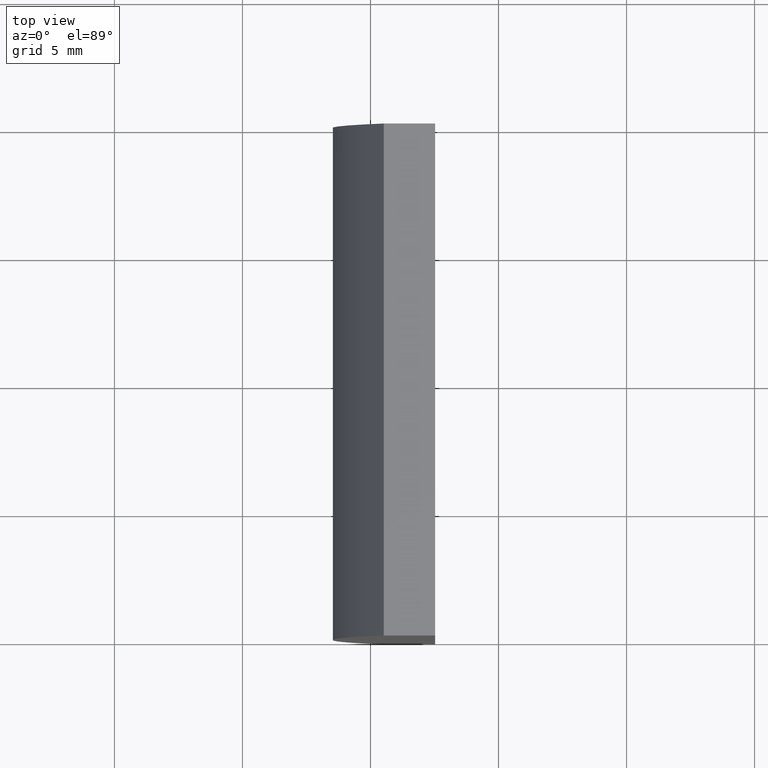
[diagram: clean part render]
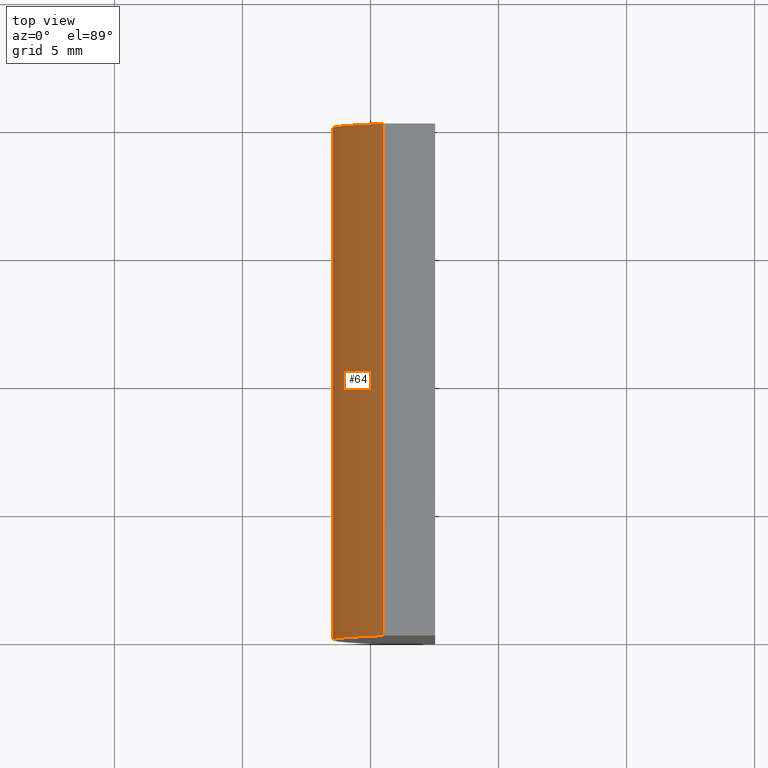
[diagram: same view with one face highlighted and labeled with its STEP entity id]
A machine part, top view. The second image highlights one B-rep face of the part: STEP entity #64.
In plain terms, the highlighted cylindrical surface (partial cylindrical patch) has radius 25.85 mm, axis along (-0, -1, -0).
Its self-contained STEP definition (entity closure, byte-faithful):
#1 = EDGE_LOOP ( 'NONE', ( #114, #41, #165, #33 ) ) ;
#2 = VECTOR ( 'NONE', #160, 1000.000000000000000 ) ;
#3 = FACE_OUTER_BOUND ( 'NONE', #1, .T. ) ;
#5 = EDGE_CURVE ( 'NONE', #54, #105, #12, .T. ) ;
#6 = CARTESIAN_POINT ( 'NONE',  ( 4.355204334851265500, 20.00000000000000000, 4.286263797015675000E-017 ) ) ;
#10 = EDGE_CURVE ( 'NONE', #99, #105, #108, .T. ) ;
#12 = CIRCLE ( 'NONE', #70, 25.85000000000000500 ) ;
#28 = CIRCLE ( 'NONE', #120, 25.85000000000000500 ) ;
#33 = ORIENTED_EDGE ( 'NONE', *, *, #119, .T. ) ;
#34 = DIRECTION ( 'NONE',  ( 0.0000000000000000000, 1.000000000000000000, 0.0000000000000000000 ) ) ;
#35 = DIRECTION ( 'NONE',  ( -0.0000000000000000000, -1.000000000000000000, -0.0000000000000000000 ) ) ;
#41 = ORIENTED_EDGE ( 'NONE', *, *, #10, .F. ) ;
#42 = AXIS2_PLACEMENT_3D ( 'NONE', #6, #35, #203 ) ;
#48 = CARTESIAN_POINT ( 'NONE',  ( -19.48221373003152100, 20.00000000000000000, -10.00000000000000000 ) ) ;
#54 = VERTEX_POINT ( 'NONE', #175 ) ;
#61 = EDGE_CURVE ( 'NONE', #140, #99, #28, .T. ) ;
#64 = ADVANCED_FACE ( 'NONE', ( #3 ), #195, .T. ) ;
#70 = AXIS2_PLACEMENT_3D ( 'NONE', #112, #34, #146 ) ;
#80 = CARTESIAN_POINT ( 'NONE',  ( -19.48221373003152100, 20.00000000000000000, 10.00000000000000000 ) ) ;
#85 = DIRECTION ( 'NONE',  ( 0.0000000000000000000, 0.0000000000000000000, 1.000000000000000000 ) ) ;
#94 = DIRECTION ( 'NONE',  ( -0.0000000000000000000, -1.000000000000000000, -0.0000000000000000000 ) ) ;
#98 = CARTESIAN_POINT ( 'NONE',  ( -19.48221373003152100, 20.00000000000000000, 10.00000000000000000 ) ) ;
#99 = VERTEX_POINT ( 'NONE', #98 ) ;
#105 = VERTEX_POINT ( 'NONE', #169 ) ;
#108 = LINE ( 'NONE', #80, #127 ) ;
#112 = CARTESIAN_POINT ( 'NONE',  ( 4.355204334851265500, 0.0000000000000000000, 4.286263797015675000E-017 ) ) ;
#114 = ORIENTED_EDGE ( 'NONE', *, *, #5, .T. ) ;
#119 = EDGE_CURVE ( 'NONE', #140, #54, #167, .T. ) ;
#120 = AXIS2_PLACEMENT_3D ( 'NONE', #183, #156, #85 ) ;
#127 = VECTOR ( 'NONE', #94, 1000.000000000000000 ) ;
#137 = CARTESIAN_POINT ( 'NONE',  ( -19.48221373003152100, 20.00000000000000000, -10.00000000000000000 ) ) ;
#140 = VERTEX_POINT ( 'NONE', #48 ) ;
#146 = DIRECTION ( 'NONE',  ( 0.0000000000000000000, 0.0000000000000000000, 1.000000000000000000 ) ) ;
#156 = DIRECTION ( 'NONE',  ( 0.0000000000000000000, 1.000000000000000000, 0.0000000000000000000 ) ) ;
#160 = DIRECTION ( 'NONE',  ( -0.0000000000000000000, -1.000000000000000000, -0.0000000000000000000 ) ) ;
#165 = ORIENTED_EDGE ( 'NONE', *, *, #61, .F. ) ;
#167 = LINE ( 'NONE', #137, #2 ) ;
#169 = CARTESIAN_POINT ( 'NONE',  ( -19.48221373003152100, 0.0000000000000000000, 10.00000000000000000 ) ) ;
#175 = CARTESIAN_POINT ( 'NONE',  ( -19.48221373003152100, 0.0000000000000000000, -10.00000000000000000 ) ) ;
#183 = CARTESIAN_POINT ( 'NONE',  ( 4.355204334851265500, 20.00000000000000000, 4.286263797015675000E-017 ) ) ;
#195 = CYLINDRICAL_SURFACE ( 'NONE', #42, 25.85000000000000500 ) ;
#203 = DIRECTION ( 'NONE',  ( 0.0000000000000000000, 0.0000000000000000000, -1.000000000000000000 ) ) ;